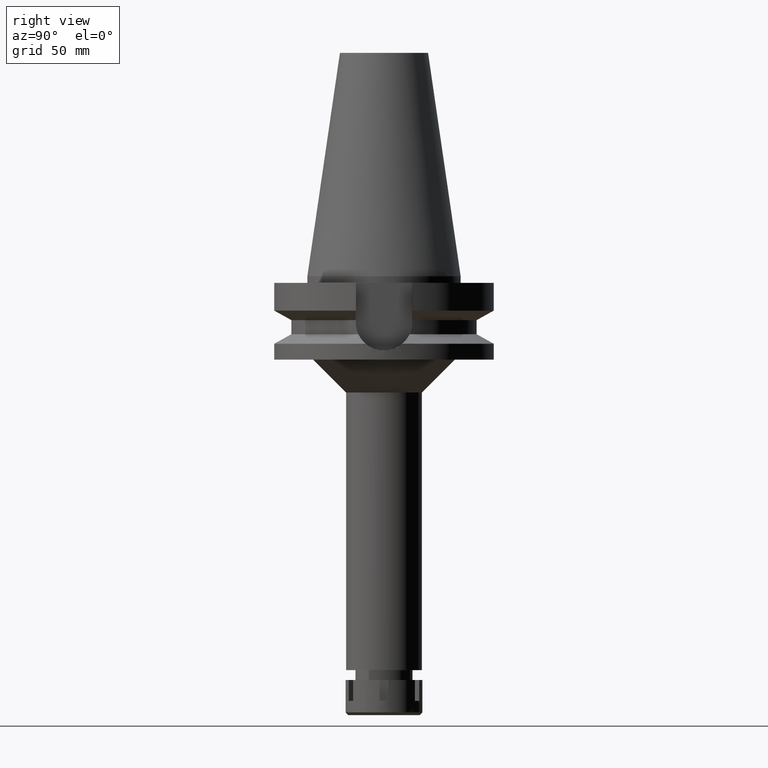
[diagram: clean part render]
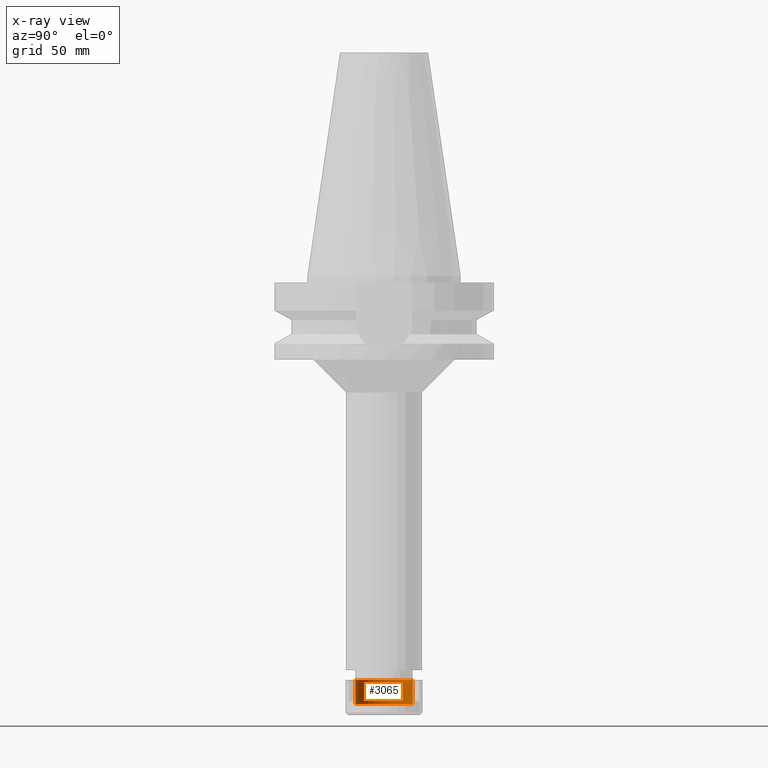
[diagram: x-ray — body ghosted, one internal face saturated and labeled with its STEP entity id]
A machine part, right view, then the same camera in x-ray: the body is ghosted and one INTERNAL B-rep face — a face not visible from any outside direction — is saturated and labeled: STEP entity #3065.
In plain terms, the highlighted cylindrical surface (edge-blend (fillet) strip) has radius 13 mm, axis along (0, 0, -1).
Its self-contained STEP definition (entity closure, byte-faithful):
#286 = ORIENTED_EDGE ( 'NONE', *, *, #402, .F. ) ;
#402 = EDGE_CURVE ( 'NONE', #1071, #3093, #735, .T. ) ;
#447 = DIRECTION ( 'NONE',  ( 0.0000000000000000000, -1.000000000000000000, 0.0000000000000000000 ) ) ;
#457 = DIRECTION ( 'NONE',  ( 0.0000000000000000000, 0.0000000000000000000, -1.000000000000000000 ) ) ;
#530 = VECTOR ( 'NONE', #1843, 1000.000000000000000 ) ;
#569 = EDGE_CURVE ( 'NONE', #3393, #3093, #1653, .T. ) ;
#625 = CIRCLE ( 'NONE', #2711, 13.00000000000000000 ) ;
#672 = LINE ( 'NONE', #2087, #920 ) ;
#727 = ORIENTED_EDGE ( 'NONE', *, *, #2211, .T. ) ;
#735 = LINE ( 'NONE', #2978, #530 ) ;
#920 = VECTOR ( 'NONE', #1810, 1000.000000000000000 ) ;
#1014 = ORIENTED_EDGE ( 'NONE', *, *, #569, .T. ) ;
#1071 = VERTEX_POINT ( 'NONE', #3010 ) ;
#1099 = DIRECTION ( 'NONE',  ( 0.0000000000000000000, 0.0000000000000000000, -1.000000000000000000 ) ) ;
#1230 = AXIS2_PLACEMENT_3D ( 'NONE', #2820, #3141, #2836 ) ;
#1269 = CARTESIAN_POINT ( 'NONE',  ( 0.0000000000000000000, 13.00000000000000000, 0.0000000000000000000 ) ) ;
#1285 = CARTESIAN_POINT ( 'NONE',  ( 0.0000000000000000000, 0.0000000000000000000, 0.0000000000000000000 ) ) ;
#1306 = FACE_OUTER_BOUND ( 'NONE', #2215, .T. ) ;
#1448 = VERTEX_POINT ( 'NONE', #2842 ) ;
#1653 = CIRCLE ( 'NONE', #1230, 13.00000000000000000 ) ;
#1810 = DIRECTION ( 'NONE',  ( 0.0000000000000000000, 0.0000000000000000000, 1.000000000000000000 ) ) ;
#1843 = DIRECTION ( 'NONE',  ( 0.0000000000000000000, 0.0000000000000000000, 1.000000000000000000 ) ) ;
#2005 = AXIS2_PLACEMENT_3D ( 'NONE', #1285, #457, #2464 ) ;
#2087 = CARTESIAN_POINT ( 'NONE',  ( 0.0000000000000000000, 13.00000000000000000, -11.00000000000000000 ) ) ;
#2176 = CARTESIAN_POINT ( 'NONE',  ( 0.0000000000000000000, -13.00000000000000000, 0.0000000000000000000 ) ) ;
#2211 = EDGE_CURVE ( 'NONE', #1071, #1448, #625, .T. ) ;
#2215 = EDGE_LOOP ( 'NONE', ( #1014, #286, #727, #2493 ) ) ;
#2464 = DIRECTION ( 'NONE',  ( 0.0000000000000000000, -1.000000000000000000, 0.0000000000000000000 ) ) ;
#2493 = ORIENTED_EDGE ( 'NONE', *, *, #2552, .T. ) ;
#2552 = EDGE_CURVE ( 'NONE', #1448, #3393, #672, .T. ) ;
#2711 = AXIS2_PLACEMENT_3D ( 'NONE', #3654, #1099, #447 ) ;
#2820 = CARTESIAN_POINT ( 'NONE',  ( 0.0000000000000000000, 0.0000000000000000000, 0.0000000000000000000 ) ) ;
#2836 = DIRECTION ( 'NONE',  ( 0.0000000000000000000, 1.000000000000000000, 0.0000000000000000000 ) ) ;
#2842 = CARTESIAN_POINT ( 'NONE',  ( 0.0000000000000000000, 13.00000000000000000, -11.00000000000000000 ) ) ;
#2978 = CARTESIAN_POINT ( 'NONE',  ( 0.0000000000000000000, -13.00000000000000000, -11.00000000000000000 ) ) ;
#3010 = CARTESIAN_POINT ( 'NONE',  ( 0.0000000000000000000, -13.00000000000000000, -11.00000000000000000 ) ) ;
#3017 = CYLINDRICAL_SURFACE ( 'NONE', #2005, 13.00000000000000000 ) ;
#3065 = ADVANCED_FACE ( 'NONE', ( #1306 ), #3017, .F. ) ;
#3093 = VERTEX_POINT ( 'NONE', #2176 ) ;
#3141 = DIRECTION ( 'NONE',  ( 0.0000000000000000000, 0.0000000000000000000, 1.000000000000000000 ) ) ;
#3393 = VERTEX_POINT ( 'NONE', #1269 ) ;
#3654 = CARTESIAN_POINT ( 'NONE',  ( 0.0000000000000000000, 0.0000000000000000000, -11.00000000000000000 ) ) ;